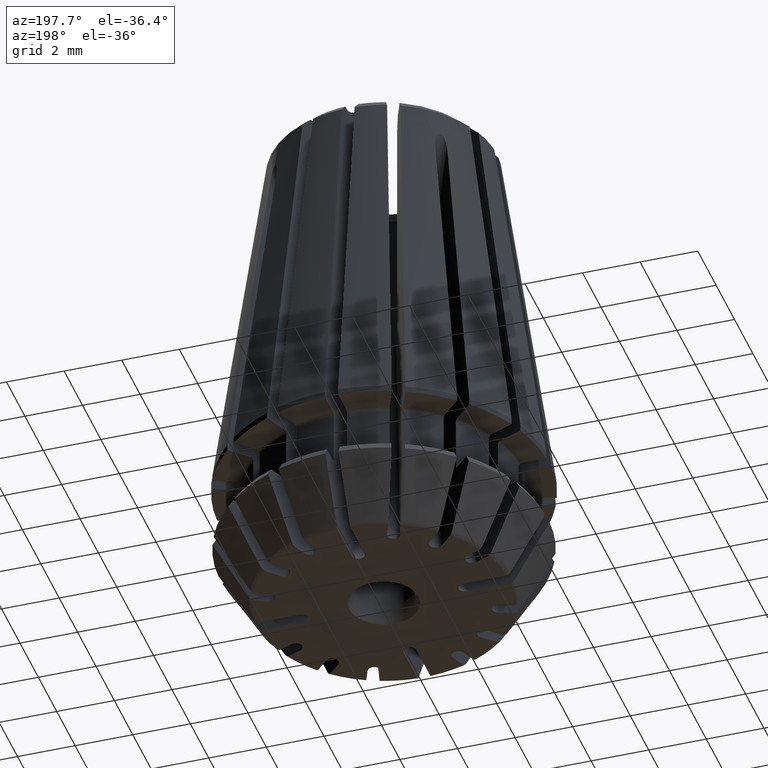
[diagram: clean part render]
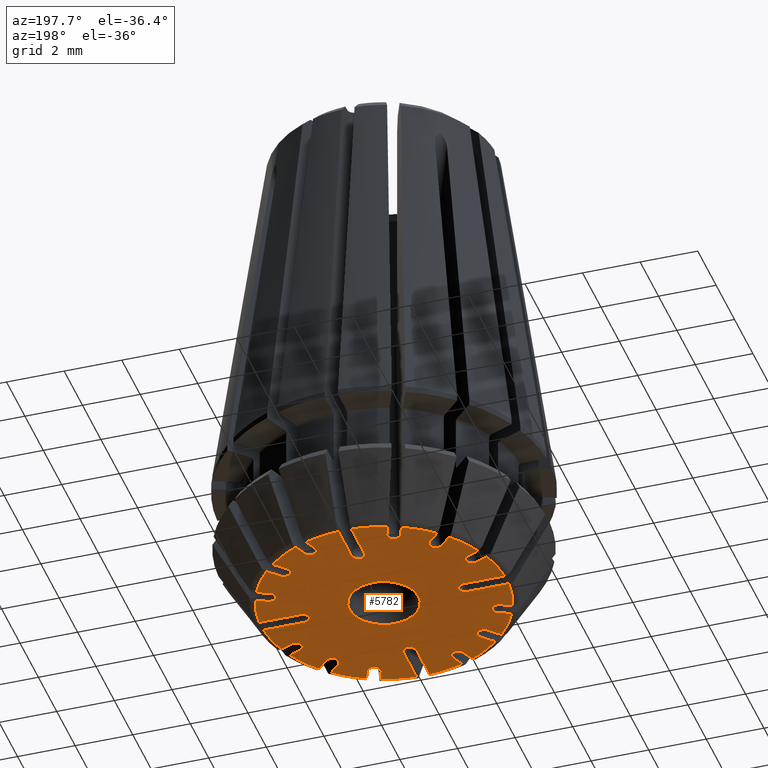
[diagram: same view with one face highlighted and labeled with its STEP entity id]
A machine part, auxiliary view. The second image highlights one B-rep face of the part: STEP entity #5782.
In plain terms, the highlighted planar face has unit normal (0, 0, 1).
Its self-contained STEP definition (entity closure, byte-faithful):
#638=LINE('',#10149,#982);
#644=LINE('',#10169,#988);
#656=LINE('',#10223,#1000);
#661=LINE('',#10236,#1005);
#668=LINE('',#10258,#1012);
#673=LINE('',#10271,#1017);
#678=LINE('',#10285,#1022);
#679=LINE('',#10287,#1023);
#683=LINE('',#10300,#1027);
#688=LINE('',#10325,#1032);
#690=LINE('',#10329,#1034);
#694=LINE('',#10341,#1038);
#697=LINE('',#10351,#1041);
#704=LINE('',#10373,#1048);
#705=LINE('',#10376,#1049);
#717=LINE('',#10418,#1061);
#722=LINE('',#10447,#1066);
#756=LINE('',#10656,#1100);
#757=LINE('',#10658,#1101);
#759=LINE('',#10662,#1103);
#761=LINE('',#10666,#1105);
#763=LINE('',#10670,#1107);
#767=LINE('',#10698,#1111);
#768=LINE('',#10704,#1112);
#771=LINE('',#10715,#1115);
#772=LINE('',#10717,#1116);
#776=LINE('',#10735,#1120);
#777=LINE('',#10748,#1121);
#778=LINE('',#10750,#1122);
#780=LINE('',#10753,#1124);
#782=LINE('',#10764,#1126);
#783=LINE('',#10773,#1127);
#982=VECTOR('',#7638,1000.);
#988=VECTOR('',#7646,1000.);
#1000=VECTOR('',#7672,1000.);
#1005=VECTOR('',#7679,1000.);
#1012=VECTOR('',#7690,1000.);
#1017=VECTOR('',#7697,1000.);
#1022=VECTOR('',#7706,1000.);
#1023=VECTOR('',#7709,1000.);
#1027=VECTOR('',#7717,1000.);
#1032=VECTOR('',#7724,1000.);
#1034=VECTOR('',#7728,1000.);
#1038=VECTOR('',#7734,1000.);
#1041=VECTOR('',#7739,1000.);
#1048=VECTOR('',#7748,1000.);
#1049=VECTOR('',#7753,1000.);
#1061=VECTOR('',#7775,1000.);
#1066=VECTOR('',#7782,1000.);
#1100=VECTOR('',#7980,1000.);
#1101=VECTOR('',#7983,1000.);
#1103=VECTOR('',#7987,1000.);
#1105=VECTOR('',#7991,1000.);
#1107=VECTOR('',#7995,1000.);
#1111=VECTOR('',#8013,1000.);
#1112=VECTOR('',#8016,1000.);
#1115=VECTOR('',#8021,1000.);
#1116=VECTOR('',#8024,1000.);
#1120=VECTOR('',#8030,1000.);
#1121=VECTOR('',#8039,1000.);
#1122=VECTOR('',#8042,1000.);
#1124=VECTOR('',#8046,1000.);
#1126=VECTOR('',#8056,1000.);
#1127=VECTOR('',#8071,1000.);
#1163=CIRCLE('',#5871,4.26228675972853);
#1185=CIRCLE('',#5905,4.26228675972853);
#1206=CIRCLE('',#5938,4.26228675972853);
#1229=CIRCLE('',#5975,4.26228675972853);
#1253=CIRCLE('',#6014,4.26228675972853);
#1275=CIRCLE('',#6049,4.26228675972853);
#1296=CIRCLE('',#6084,4.26228675972853);
#1316=CIRCLE('',#6116,4.26228675972853);
#1330=CIRCLE('',#6140,4.26228675972853);
#1340=CIRCLE('',#6158,4.26228675972853);
#1354=CIRCLE('',#6182,4.26228675972853);
#1364=CIRCLE('',#6200,4.26228675972853);
#1378=CIRCLE('',#6224,4.26228675972853);
#1388=CIRCLE('',#6242,4.26228675972853);
#1403=CIRCLE('',#6268,4.26228675972853);
#1416=CIRCLE('',#6290,4.26228675972853);
#1420=CIRCLE('',#6297,1.2);
#3093=ORIENTED_EDGE('',*,*,#4172,.F.);
#3094=ORIENTED_EDGE('',*,*,#4182,.T.);
#3095=ORIENTED_EDGE('',*,*,#4001,.T.);
#3096=ORIENTED_EDGE('',*,*,#3846,.F.);
#3097=ORIENTED_EDGE('',*,*,#4183,.T.);
#3098=ORIENTED_EDGE('',*,*,#3964,.T.);
#3099=ORIENTED_EDGE('',*,*,#3946,.F.);
#3100=ORIENTED_EDGE('',*,*,#3697,.F.);
#3101=ORIENTED_EDGE('',*,*,#4144,.F.);
#3102=ORIENTED_EDGE('',*,*,#4184,.T.);
#3103=ORIENTED_EDGE('',*,*,#4037,.T.);
#3104=ORIENTED_EDGE('',*,*,#3934,.F.);
#3105=ORIENTED_EDGE('',*,*,#4176,.T.);
#3106=ORIENTED_EDGE('',*,*,#3960,.T.);
#3107=ORIENTED_EDGE('',*,*,#3954,.F.);
#3108=ORIENTED_EDGE('',*,*,#3456,.F.);
#3109=ORIENTED_EDGE('',*,*,#4015,.F.);
#3110=ORIENTED_EDGE('',*,*,#4185,.T.);
#3111=ORIENTED_EDGE('',*,*,#4007,.T.);
#3112=ORIENTED_EDGE('',*,*,#3906,.F.);
#3113=ORIENTED_EDGE('',*,*,#4062,.T.);
#3114=ORIENTED_EDGE('',*,*,#4186,.T.);
#3115=ORIENTED_EDGE('',*,*,#4166,.F.);
#3116=ORIENTED_EDGE('',*,*,#3610,.F.);
#3117=ORIENTED_EDGE('',*,*,#4151,.F.);
#3118=ORIENTED_EDGE('',*,*,#4187,.T.);
#3119=ORIENTED_EDGE('',*,*,#4026,.T.);
#3120=ORIENTED_EDGE('',*,*,#3757,.F.);
#3121=ORIENTED_EDGE('',*,*,#4054,.T.);
#3122=ORIENTED_EDGE('',*,*,#4044,.T.);
#3123=ORIENTED_EDGE('',*,*,#4149,.F.);
#3124=ORIENTED_EDGE('',*,*,#3365,.F.);
#3125=ORIENTED_EDGE('',*,*,#4000,.F.);
#3126=ORIENTED_EDGE('',*,*,#4188,.T.);
#3127=ORIENTED_EDGE('',*,*,#4179,.T.);
#3128=ORIENTED_EDGE('',*,*,#3732,.F.);
#3129=ORIENTED_EDGE('',*,*,#3988,.T.);
#3130=ORIENTED_EDGE('',*,*,#4189,.T.);
#3131=ORIENTED_EDGE('',*,*,#4161,.F.);
#3132=ORIENTED_EDGE('',*,*,#3658,.F.);
#3133=ORIENTED_EDGE('',*,*,#4035,.F.);
#3134=ORIENTED_EDGE('',*,*,#4190,.T.);
#3135=ORIENTED_EDGE('',*,*,#4191,.T.);
#3136=ORIENTED_EDGE('',*,*,#3814,.F.);
#3137=ORIENTED_EDGE('',*,*,#3994,.T.);
#3138=ORIENTED_EDGE('',*,*,#4063,.T.);
#3139=ORIENTED_EDGE('',*,*,#4165,.F.);
#3140=ORIENTED_EDGE('',*,*,#3507,.F.);
#3141=ORIENTED_EDGE('',*,*,#4017,.F.);
#3142=ORIENTED_EDGE('',*,*,#4192,.T.);
#3143=ORIENTED_EDGE('',*,*,#4147,.T.);
#3144=ORIENTED_EDGE('',*,*,#3789,.F.);
#3145=ORIENTED_EDGE('',*,*,#3973,.T.);
#3146=ORIENTED_EDGE('',*,*,#4154,.T.);
#3147=ORIENTED_EDGE('',*,*,#4177,.F.);
#3148=ORIENTED_EDGE('',*,*,#3564,.F.);
#3149=ORIENTED_EDGE('',*,*,#4022,.F.);
#3150=ORIENTED_EDGE('',*,*,#4193,.T.);
#3151=ORIENTED_EDGE('',*,*,#4145,.T.);
#3152=ORIENTED_EDGE('',*,*,#3871,.F.);
#3153=ORIENTED_EDGE('',*,*,#3979,.T.);
#3154=ORIENTED_EDGE('',*,*,#4155,.T.);
#3155=ORIENTED_EDGE('',*,*,#4159,.F.);
#3156=ORIENTED_EDGE('',*,*,#3411,.F.);
#3157=ORIENTED_EDGE('',*,*,#3944,.T.);
#3365=EDGE_CURVE('',#4272,#4273,#1163,.T.);
#3411=EDGE_CURVE('',#4308,#4309,#1185,.T.);
#3456=EDGE_CURVE('',#4342,#4343,#1206,.T.);
#3507=EDGE_CURVE('',#4380,#4381,#1229,.T.);
#3564=EDGE_CURVE('',#4424,#4425,#1253,.T.);
#3610=EDGE_CURVE('',#4460,#4461,#1275,.T.);
#3658=EDGE_CURVE('',#4495,#4496,#1296,.T.);
#3697=EDGE_CURVE('',#4525,#4526,#1316,.T.);
#3732=EDGE_CURVE('',#4552,#4553,#1330,.T.);
#3757=EDGE_CURVE('',#4569,#4570,#1340,.T.);
#3789=EDGE_CURVE('',#4591,#4592,#1354,.T.);
#3814=EDGE_CURVE('',#4608,#4609,#1364,.T.);
#3846=EDGE_CURVE('',#4630,#4631,#1378,.T.);
#3871=EDGE_CURVE('',#4647,#4648,#1388,.T.);
#3906=EDGE_CURVE('',#4671,#4672,#1403,.T.);
#3934=EDGE_CURVE('',#4690,#4691,#1416,.T.);
#3944=EDGE_CURVE('',#4698,#4698,#1420,.T.);
#3946=EDGE_CURVE('',#4526,#4700,#638,.T.);
#3954=EDGE_CURVE('',#4343,#4705,#644,.T.);
#3960=EDGE_CURVE('',#4706,#4705,#4828,.T.);
#3964=EDGE_CURVE('',#4709,#4700,#4829,.T.);
#3973=EDGE_CURVE('',#4591,#4714,#656,.T.);
#3979=EDGE_CURVE('',#4647,#4717,#661,.T.);
#3988=EDGE_CURVE('',#4552,#4722,#668,.T.);
#3994=EDGE_CURVE('',#4608,#4725,#673,.T.);
#4000=EDGE_CURVE('',#4728,#4272,#678,.T.);
#4001=EDGE_CURVE('',#4729,#4631,#679,.T.);
#4007=EDGE_CURVE('',#4732,#4672,#683,.T.);
#4015=EDGE_CURVE('',#4735,#4342,#688,.T.);
#4017=EDGE_CURVE('',#4736,#4380,#690,.T.);
#4022=EDGE_CURVE('',#4739,#4424,#694,.T.);
#4026=EDGE_CURVE('',#4742,#4570,#697,.T.);
#4035=EDGE_CURVE('',#4747,#4495,#704,.T.);
#4037=EDGE_CURVE('',#4748,#4691,#705,.T.);
#4044=EDGE_CURVE('',#4753,#4754,#4830,.T.);
#4054=EDGE_CURVE('',#4569,#4753,#717,.T.);
#4062=EDGE_CURVE('',#4671,#4761,#722,.T.);
#4063=EDGE_CURVE('',#4725,#4762,#4831,.T.);
#4144=EDGE_CURVE('',#4794,#4525,#756,.T.);
#4145=EDGE_CURVE('',#4795,#4648,#757,.T.);
#4147=EDGE_CURVE('',#4796,#4592,#759,.T.);
#4149=EDGE_CURVE('',#4273,#4754,#761,.T.);
#4151=EDGE_CURVE('',#4797,#4460,#763,.T.);
#4154=EDGE_CURVE('',#4714,#4799,#4832,.T.);
#4155=EDGE_CURVE('',#4717,#4800,#4833,.T.);
#4159=EDGE_CURVE('',#4309,#4800,#767,.T.);
#4161=EDGE_CURVE('',#4496,#4802,#768,.T.);
#4165=EDGE_CURVE('',#4381,#4762,#771,.T.);
#4166=EDGE_CURVE('',#4461,#4805,#772,.T.);
#4172=EDGE_CURVE('',#4809,#4308,#776,.T.);
#4176=EDGE_CURVE('',#4690,#4706,#777,.T.);
#4177=EDGE_CURVE('',#4425,#4799,#778,.T.);
#4179=EDGE_CURVE('',#4810,#4553,#780,.T.);
#4182=EDGE_CURVE('',#4809,#4729,#4834,.T.);
#4183=EDGE_CURVE('',#4630,#4709,#782,.T.);
#4184=EDGE_CURVE('',#4794,#4748,#4835,.T.);
#4185=EDGE_CURVE('',#4735,#4732,#4836,.T.);
#4186=EDGE_CURVE('',#4761,#4805,#4837,.T.);
#4187=EDGE_CURVE('',#4797,#4742,#4838,.T.);
#4188=EDGE_CURVE('',#4728,#4810,#4839,.T.);
#4189=EDGE_CURVE('',#4722,#4802,#4840,.T.);
#4190=EDGE_CURVE('',#4747,#4811,#4841,.T.);
#4191=EDGE_CURVE('',#4811,#4609,#783,.T.);
#4192=EDGE_CURVE('',#4736,#4796,#4842,.T.);
#4193=EDGE_CURVE('',#4739,#4795,#4843,.T.);
#4272=VERTEX_POINT('',#8330);
#4273=VERTEX_POINT('',#8332);
#4308=VERTEX_POINT('',#8480);
#4309=VERTEX_POINT('',#8482);
#4342=VERTEX_POINT('',#8627);
#4343=VERTEX_POINT('',#8629);
#4380=VERTEX_POINT('',#8786);
#4381=VERTEX_POINT('',#8788);
#4424=VERTEX_POINT('',#8975);
#4425=VERTEX_POINT('',#8977);
#4460=VERTEX_POINT('',#9108);
#4461=VERTEX_POINT('',#9110);
#4495=VERTEX_POINT('',#9267);
#4496=VERTEX_POINT('',#9269);
#4525=VERTEX_POINT('',#9374);
#4526=VERTEX_POINT('',#9376);
#4552=VERTEX_POINT('',#9492);
#4553=VERTEX_POINT('',#9493);
#4569=VERTEX_POINT('',#9563);
#4570=VERTEX_POINT('',#9564);
#4591=VERTEX_POINT('',#9666);
#4592=VERTEX_POINT('',#9667);
#4608=VERTEX_POINT('',#9737);
#4609=VERTEX_POINT('',#9738);
#4630=VERTEX_POINT('',#9840);
#4631=VERTEX_POINT('',#9841);
#4647=VERTEX_POINT('',#9911);
#4648=VERTEX_POINT('',#9912);
#4671=VERTEX_POINT('',#10026);
#4672=VERTEX_POINT('',#10027);
#4690=VERTEX_POINT('',#10118);
#4691=VERTEX_POINT('',#10119);
#4698=VERTEX_POINT('',#10145);
#4700=VERTEX_POINT('',#10150);
#4705=VERTEX_POINT('',#10170);
#4706=VERTEX_POINT('',#10183);
#4709=VERTEX_POINT('',#10202);
#4714=VERTEX_POINT('',#10222);
#4717=VERTEX_POINT('',#10235);
#4722=VERTEX_POINT('',#10257);
#4725=VERTEX_POINT('',#10270);
#4728=VERTEX_POINT('',#10284);
#4729=VERTEX_POINT('',#10288);
#4732=VERTEX_POINT('',#10301);
#4735=VERTEX_POINT('',#10324);
#4736=VERTEX_POINT('',#10328);
#4739=VERTEX_POINT('',#10340);
#4742=VERTEX_POINT('',#10352);
#4747=VERTEX_POINT('',#10372);
#4748=VERTEX_POINT('',#10377);
#4753=VERTEX_POINT('',#10399);
#4754=VERTEX_POINT('',#10400);
#4761=VERTEX_POINT('',#10446);
#4762=VERTEX_POINT('',#10450);
#4794=VERTEX_POINT('',#10655);
#4795=VERTEX_POINT('',#10659);
#4796=VERTEX_POINT('',#10663);
#4797=VERTEX_POINT('',#10669);
#4799=VERTEX_POINT('',#10684);
#4800=VERTEX_POINT('',#10688);
#4802=VERTEX_POINT('',#10705);
#4805=VERTEX_POINT('',#10718);
#4809=VERTEX_POINT('',#10734);
#4810=VERTEX_POINT('',#10754);
#4811=VERTEX_POINT('',#10772);
#4828=ELLIPSE('',#6304,0.228103594886184,0.225);
#4829=ELLIPSE('',#6306,0.259807621135332,0.225);
#4830=ELLIPSE('',#6325,0.228103594886183,0.225);
#4831=ELLIPSE('',#6331,0.228103594886184,0.225);
#4832=ELLIPSE('',#6418,0.259807621135332,0.225);
#4833=ELLIPSE('',#6420,0.228103594886184,0.225);
#4834=ELLIPSE('',#6436,0.228470987674293,0.225);
#4835=ELLIPSE('',#6437,0.228470987674293,0.225);
#4836=ELLIPSE('',#6438,0.228470987674293,0.225);
#4837=ELLIPSE('',#6439,0.259807621135332,0.225);
#4838=ELLIPSE('',#6440,0.228470987674293,0.225);
#4839=ELLIPSE('',#6441,0.228470987674293,0.225);
#4840=ELLIPSE('',#6442,0.259807621135332,0.225);
#4841=ELLIPSE('',#6443,0.228470987674293,0.225);
#4842=ELLIPSE('',#6444,0.228470987674293,0.225);
#4843=ELLIPSE('',#6445,0.228470987674293,0.225);
#5118=EDGE_LOOP('',(#3093,#3094,#3095,#3096,#3097,#3098,#3099,#3100,#3101,
#3102,#3103,#3104,#3105,#3106,#3107,#3108,#3109,#3110,#3111,#3112,#3113,
#3114,#3115,#3116,#3117,#3118,#3119,#3120,#3121,#3122,#3123,#3124,#3125,
#3126,#3127,#3128,#3129,#3130,#3131,#3132,#3133,#3134,#3135,#3136,#3137,
#3138,#3139,#3140,#3141,#3142,#3143,#3144,#3145,#3146,#3147,#3148,#3149,
#3150,#3151,#3152,#3153,#3154,#3155,#3156));
#5119=EDGE_LOOP('',(#3157));
#5412=FACE_BOUND('',#5118,.T.);
#5413=FACE_BOUND('',#5119,.T.);
#5506=PLANE('',#6435);
#5782=ADVANCED_FACE('',(#5412,#5413),#5506,.F.);
#5871=AXIS2_PLACEMENT_3D('',#8331,#6602,#6603);
#5905=AXIS2_PLACEMENT_3D('',#8481,#6684,#6685);
#5938=AXIS2_PLACEMENT_3D('',#8628,#6764,#6765);
#5975=AXIS2_PLACEMENT_3D('',#8787,#6856,#6857);
#6014=AXIS2_PLACEMENT_3D('',#8976,#6950,#6951);
#6049=AXIS2_PLACEMENT_3D('',#9109,#7036,#7037);
#6084=AXIS2_PLACEMENT_3D('',#9268,#7122,#7123);
#6116=AXIS2_PLACEMENT_3D('',#9375,#7198,#7199);
#6140=AXIS2_PLACEMENT_3D('',#9491,#7258,#7259);
#6158=AXIS2_PLACEMENT_3D('',#9562,#7302,#7303);
#6182=AXIS2_PLACEMENT_3D('',#9665,#7358,#7359);
#6200=AXIS2_PLACEMENT_3D('',#9736,#7402,#7403);
#6224=AXIS2_PLACEMENT_3D('',#9839,#7458,#7459);
#6242=AXIS2_PLACEMENT_3D('',#9910,#7502,#7503);
#6268=AXIS2_PLACEMENT_3D('',#10025,#7562,#7563);
#6290=AXIS2_PLACEMENT_3D('',#10117,#7614,#7615);
#6297=AXIS2_PLACEMENT_3D('',#10144,#7632,#7633);
#6304=AXIS2_PLACEMENT_3D('',#10182,#7657,#7658);
#6306=AXIS2_PLACEMENT_3D('',#10201,#7662,#7663);
#6325=AXIS2_PLACEMENT_3D('',#10398,#7759,#7760);
#6331=AXIS2_PLACEMENT_3D('',#10449,#7785,#7786);
#6418=AXIS2_PLACEMENT_3D('',#10685,#8001,#8002);
#6420=AXIS2_PLACEMENT_3D('',#10687,#8005,#8006);
#6435=AXIS2_PLACEMENT_3D('',#10762,#8052,#8053);
#6436=AXIS2_PLACEMENT_3D('',#10763,#8054,#8055);
#6437=AXIS2_PLACEMENT_3D('',#10765,#8057,#8058);
#6438=AXIS2_PLACEMENT_3D('',#10766,#8059,#8060);
#6439=AXIS2_PLACEMENT_3D('',#10767,#8061,#8062);
#6440=AXIS2_PLACEMENT_3D('',#10768,#8063,#8064);
#6441=AXIS2_PLACEMENT_3D('',#10769,#8065,#8066);
#6442=AXIS2_PLACEMENT_3D('',#10770,#8067,#8068);
#6443=AXIS2_PLACEMENT_3D('',#10771,#8069,#8070);
#6444=AXIS2_PLACEMENT_3D('',#10774,#8072,#8073);
#6445=AXIS2_PLACEMENT_3D('',#10775,#8074,#8075);
#6602=DIRECTION('',(0.,0.,1.));
#6603=DIRECTION('',(1.,0.,0.));
#6684=DIRECTION('',(0.,0.,1.));
#6685=DIRECTION('',(1.,0.,0.));
#6764=DIRECTION('',(0.,0.,1.));
#6765=DIRECTION('',(1.,0.,0.));
#6856=DIRECTION('',(0.,0.,1.));
#6857=DIRECTION('',(1.,0.,0.));
#6950=DIRECTION('',(0.,0.,1.));
#6951=DIRECTION('',(1.,0.,0.));
#7036=DIRECTION('',(0.,0.,1.));
#7037=DIRECTION('',(1.,0.,0.));
#7122=DIRECTION('',(0.,0.,1.));
#7123=DIRECTION('',(1.,0.,0.));
#7198=DIRECTION('',(0.,0.,1.));
#7199=DIRECTION('',(1.,0.,0.));
#7258=DIRECTION('',(0.,0.,1.));
#7259=DIRECTION('',(1.,0.,0.));
#7302=DIRECTION('',(0.,0.,1.));
#7303=DIRECTION('',(1.,0.,0.));
#7358=DIRECTION('',(0.,0.,1.));
#7359=DIRECTION('',(1.,0.,0.));
#7402=DIRECTION('',(0.,0.,1.));
#7403=DIRECTION('',(1.,0.,0.));
#7458=DIRECTION('',(0.,0.,1.));
#7459=DIRECTION('',(1.,0.,0.));
#7502=DIRECTION('',(0.,0.,1.));
#7503=DIRECTION('',(1.,0.,0.));
#7562=DIRECTION('',(0.,0.,1.));
#7563=DIRECTION('',(1.,0.,0.));
#7614=DIRECTION('',(0.,0.,1.));
#7615=DIRECTION('',(1.,0.,0.));
#7632=DIRECTION('',(0.,0.,1.));
#7633=DIRECTION('',(1.,0.,0.));
#7638=DIRECTION('',(0.,1.,0.));
#7646=DIRECTION('',(0.707106781186548,0.707106781186548,0.));
#7657=DIRECTION('',(0.,0.,1.));
#7658=DIRECTION('',(-0.707106781186548,-0.707106781186548,0.));
#7662=DIRECTION('',(0.,0.,1.));
#7663=DIRECTION('',(0.,-1.,0.));
#7672=DIRECTION('',(-1.,-1.83697019872103E-16,0.));
#7679=DIRECTION('',(-0.707106781186548,0.707106781186548,0.));
#7690=DIRECTION('',(1.22464679914735E-16,-1.,0.));
#7697=DIRECTION('',(-0.707106781186548,-0.707106781186548,0.));
#7706=DIRECTION('',(-0.38268343236509,0.923879532511287,-3.59445166682828E-16));
#7709=DIRECTION('',(0.38268343236509,-0.923879532511287,-3.59445166682828E-16));
#7717=DIRECTION('',(-0.923879532511287,-0.38268343236509,-3.59445166682827E-16));
#7724=DIRECTION('',(-0.923879532511287,-0.38268343236509,-3.59445166682827E-16));
#7728=DIRECTION('',(0.923879532511287,0.38268343236509,-3.59445166682827E-16));
#7734=DIRECTION('',(0.923879532511287,-0.38268343236509,3.59445166682827E-16));
#7739=DIRECTION('',(-0.923879532511287,0.38268343236509,-3.59445166682827E-16));
#7748=DIRECTION('',(0.38268343236509,0.923879532511287,3.59445166682827E-16));
#7753=DIRECTION('',(-0.38268343236509,-0.923879532511287,-3.59445166682827E-16));
#7759=DIRECTION('',(0.,0.,1.));
#7760=DIRECTION('',(-0.707106781186547,0.707106781186548,0.));
#7775=DIRECTION('',(0.707106781186547,-0.707106781186548,0.));
#7782=DIRECTION('',(1.,-1.60812264967663E-16,0.));
#7785=DIRECTION('',(0.,0.,1.));
#7786=DIRECTION('',(0.707106781186548,0.707106781186548,0.));
#7980=DIRECTION('',(-0.38268343236509,-0.923879532511287,-3.59445166682827E-16));
#7983=DIRECTION('',(0.923879532511287,-0.38268343236509,3.59445166682827E-16));
#7987=DIRECTION('',(0.923879532511287,0.38268343236509,-3.59445166682827E-16));
#7991=DIRECTION('',(0.707106781186547,-0.707106781186548,0.));
#7995=DIRECTION('',(-0.923879532511287,0.38268343236509,-3.59445166682827E-16));
#8001=DIRECTION('',(0.,0.,1.));
#8002=DIRECTION('',(1.,1.83697019872103E-16,0.));
#8005=DIRECTION('',(0.,0.,1.));
#8006=DIRECTION('',(0.707106781186548,-0.707106781186548,0.));
#8013=DIRECTION('',(-0.707106781186548,0.707106781186548,0.));
#8016=DIRECTION('',(1.22464679914735E-16,-1.,0.));
#8021=DIRECTION('',(-0.707106781186548,-0.707106781186548,0.));
#8024=DIRECTION('',(1.,-1.60812264967663E-16,0.));
#8030=DIRECTION('',(0.38268343236509,-0.923879532511287,-3.59445166682828E-16));
#8039=DIRECTION('',(0.707106781186548,0.707106781186548,0.));
#8042=DIRECTION('',(-1.,-1.83697019872103E-16,0.));
#8046=DIRECTION('',(-0.38268343236509,0.923879532511287,-3.59445166682828E-16));
#8052=DIRECTION('',(0.,0.,1.));
#8053=DIRECTION('',(1.,0.,0.));
#8054=DIRECTION('',(0.,0.,1.));
#8055=DIRECTION('',(-0.38268343236509,0.923879532511287,0.));
#8056=DIRECTION('',(0.,1.,0.));
#8057=DIRECTION('',(0.,0.,1.));
#8058=DIRECTION('',(-0.38268343236509,-0.923879532511287,0.));
#8059=DIRECTION('',(0.,0.,1.));
#8060=DIRECTION('',(-0.923879532511287,-0.38268343236509,0.));
#8061=DIRECTION('',(0.,0.,1.));
#8062=DIRECTION('',(-1.,1.60812264967664E-16,0.));
#8063=DIRECTION('',(0.,0.,1.));
#8064=DIRECTION('',(-0.923879532511287,0.38268343236509,0.));
#8065=DIRECTION('',(0.,0.,1.));
#8066=DIRECTION('',(-0.38268343236509,0.923879532511287,0.));
#8067=DIRECTION('',(0.,0.,1.));
#8068=DIRECTION('',(-1.22464679914735E-16,1.,0.));
#8069=DIRECTION('',(0.,0.,1.));
#8070=DIRECTION('',(0.38268343236509,0.923879532511287,0.));
#8071=DIRECTION('',(0.38268343236509,0.923879532511287,3.59445166682827E-16));
#8072=DIRECTION('',(0.,0.,1.));
#8073=DIRECTION('',(-0.923879532511287,-0.38268343236509,0.));
#8074=DIRECTION('',(0.,0.,1.));
#8075=DIRECTION('',(0.923879532511287,-0.38268343236509,0.));
#8330=CARTESIAN_POINT('',(-1.83670518901107,3.84624524319718,-4.5));
#8331=CARTESIAN_POINT('',(0.,0.,-4.5));
#8332=CARTESIAN_POINT('',(-2.85059061123527,3.16878866276922,-4.50000000000012));
#8480=CARTESIAN_POINT('',(1.83670518901106,-3.84624524319719,-4.5));
#8481=CARTESIAN_POINT('',(0.,0.,-4.5));
#8482=CARTESIAN_POINT('',(2.85059061123527,-3.16878866276922,-4.50000000000012));
#8627=CARTESIAN_POINT('',(-3.84624524319718,-1.83670518901106,-4.5));
#8628=CARTESIAN_POINT('',(0.,0.,-4.5));
#8629=CARTESIAN_POINT('',(-3.16878866276823,-2.85059061123428,-4.5));
#8786=CARTESIAN_POINT('',(3.84624524319718,1.83670518901106,-4.5));
#8787=CARTESIAN_POINT('',(0.,0.,-4.5));
#8788=CARTESIAN_POINT('',(3.16878866276922,2.85059061123527,-4.50000000000012));
#8975=CARTESIAN_POINT('',(4.01845278776147,-1.42095939938098,-4.5));
#8976=CARTESIAN_POINT('',(0.,0.,-4.5));
#8977=CARTESIAN_POINT('',(4.25634390318231,-0.225,-4.50000000000012));
#9108=CARTESIAN_POINT('',(-4.01845278776147,1.42095939938098,-4.5));
#9109=CARTESIAN_POINT('',(0.,0.,-4.5));
#9110=CARTESIAN_POINT('',(-4.25634390318225,0.225,-4.50000000000012));
#9267=CARTESIAN_POINT('',(1.42095939938098,4.01845278776147,-4.5));
#9268=CARTESIAN_POINT('',(0.,0.,-4.5));
#9269=CARTESIAN_POINT('',(0.225,4.25634390318231,-4.50000000000012));
#9374=CARTESIAN_POINT('',(-1.42095939938098,-4.01845278776147,-4.5));
#9375=CARTESIAN_POINT('',(0.,0.,-4.5));
#9376=CARTESIAN_POINT('',(-0.225,-4.25634390318206,-4.50000000000012));
#9491=CARTESIAN_POINT('',(0.,0.,-4.5));
#9492=CARTESIAN_POINT('',(-0.225,4.25634390318231,-4.50000000000012));
#9493=CARTESIAN_POINT('',(-1.42095939938099,4.01845278776147,-4.5));
#9562=CARTESIAN_POINT('',(0.,0.,-4.5));
#9563=CARTESIAN_POINT('',(-3.16878866276921,2.85059061123527,-4.50000000000012));
#9564=CARTESIAN_POINT('',(-3.84624524319718,1.83670518901106,-4.5));
#9665=CARTESIAN_POINT('',(0.,0.,-4.5));
#9666=CARTESIAN_POINT('',(4.25634390318231,0.225,-4.50000000000012));
#9667=CARTESIAN_POINT('',(4.01845278776147,1.42095939938099,-4.5));
#9736=CARTESIAN_POINT('',(0.,0.,-4.5));
#9737=CARTESIAN_POINT('',(2.85059061123527,3.16878866276922,-4.50000000000012));
#9738=CARTESIAN_POINT('',(1.83670518901106,3.84624524319718,-4.5));
#9839=CARTESIAN_POINT('',(0.,0.,-4.5));
#9840=CARTESIAN_POINT('',(0.225,-4.25634390318206,-4.50000000000012));
#9841=CARTESIAN_POINT('',(1.42095939938098,-4.01845278776147,-4.5));
#9910=CARTESIAN_POINT('',(0.,0.,-4.5));
#9911=CARTESIAN_POINT('',(3.16878866276922,-2.85059061123527,-4.50000000000012));
#9912=CARTESIAN_POINT('',(3.84624524319718,-1.83670518901106,-4.5));
#10025=CARTESIAN_POINT('',(0.,0.,-4.5));
#10026=CARTESIAN_POINT('',(-4.25634390318225,-0.225,-4.50000000000012));
#10027=CARTESIAN_POINT('',(-4.01845278776147,-1.42095939938099,-4.5));
#10117=CARTESIAN_POINT('',(0.,0.,-4.5));
#10118=CARTESIAN_POINT('',(-2.85059061123428,-3.16878866276823,-4.5));
#10119=CARTESIAN_POINT('',(-1.83670518901106,-3.84624524319718,-4.5));
#10144=CARTESIAN_POINT('',(0.,0.,-4.5));
#10145=CARTESIAN_POINT('',(1.2,0.,-4.5));
#10149=CARTESIAN_POINT('',(-0.225,0.,-4.5));
#10150=CARTESIAN_POINT('',(-0.225,-2.85788383248865,-4.5));
#10169=CARTESIAN_POINT('',(-0.159099025766973,0.159099025766973,-4.5));
#10170=CARTESIAN_POINT('',(-2.79526635867694,-2.47706830714299,-4.5));
#10182=CARTESIAN_POINT('',(-2.63616733290996,-2.63616733290996,-4.5));
#10183=CARTESIAN_POINT('',(-2.477068307143,-2.79526635867694,-4.5));
#10201=CARTESIAN_POINT('',(-2.71050543121376E-17,-2.85788383248865,-4.5));
#10202=CARTESIAN_POINT('',(0.225,-2.85788383248865,-4.5));
#10222=CARTESIAN_POINT('',(2.85788383248865,0.225,-4.5));
#10223=CARTESIAN_POINT('',(-4.13318294712232E-17,0.225,-4.5));
#10235=CARTESIAN_POINT('',(2.79526635867694,-2.47706830714299,-4.5));
#10236=CARTESIAN_POINT('',(0.159099025766973,0.159099025766973,-4.5));
#10257=CARTESIAN_POINT('',(-0.225,2.85788383248865,-4.5));
#10258=CARTESIAN_POINT('',(-0.225,-2.75545529808155E-17,-4.5));
#10270=CARTESIAN_POINT('',(2.47706830714299,2.79526635867694,-4.5));
#10271=CARTESIAN_POINT('',(-0.159099025766973,0.159099025766973,-4.5));
#10284=CARTESIAN_POINT('',(-1.66796854906906,3.43887895857993,-4.5));
#10285=CARTESIAN_POINT('',(-1.58053648731002,3.227799289295,-4.5));
#10287=CARTESIAN_POINT('',(1.16479069767993,-3.4000068338593,-4.5));
#10288=CARTESIAN_POINT('',(1.25222275943897,-3.61108650314421,-4.5));
#10300=CARTESIAN_POINT('',(-3.40000683385929,-1.16479069767994,-4.5));
#10301=CARTESIAN_POINT('',(-3.61108650314422,-1.25222275943898,-4.5));
#10324=CARTESIAN_POINT('',(-3.43887895857993,-1.66796854906906,-4.5));
#10325=CARTESIAN_POINT('',(-3.227799289295,-1.58053648731001,-4.5));
#10328=CARTESIAN_POINT('',(3.43887895857992,1.66796854906906,-4.5));
#10329=CARTESIAN_POINT('',(3.227799289295,1.58053648731001,-4.5));
#10340=CARTESIAN_POINT('',(3.61108650314421,-1.25222275943897,-4.5));
#10341=CARTESIAN_POINT('',(3.70488349706835,-1.29107474643218,-4.5));
#10351=CARTESIAN_POINT('',(-3.227799289295,1.58053648731001,-4.5));
#10352=CARTESIAN_POINT('',(-3.43887895857991,1.66796854906906,-4.5));
#10372=CARTESIAN_POINT('',(1.25222275943897,3.61108650314421,-4.5));
#10373=CARTESIAN_POINT('',(1.29107474643218,3.70488349706835,-4.5));
#10376=CARTESIAN_POINT('',(-1.58053648731001,-3.227799289295,-4.5));
#10377=CARTESIAN_POINT('',(-1.66796854906906,-3.43887895857991,-4.5));
#10398=CARTESIAN_POINT('',(-2.63616733290996,2.63616733290996,-4.5));
#10399=CARTESIAN_POINT('',(-2.79526635867694,2.477068307143,-4.5));
#10400=CARTESIAN_POINT('',(-2.47706830714299,2.79526635867694,-4.5));
#10418=CARTESIAN_POINT('',(-0.159099025766973,-0.159099025766973,-4.5));
#10446=CARTESIAN_POINT('',(-2.85788383248865,-0.225,-4.5));
#10447=CARTESIAN_POINT('',(-3.61827596177244E-17,-0.225,-4.5));
#10449=CARTESIAN_POINT('',(2.63616733290996,2.63616733290996,-4.5));
#10450=CARTESIAN_POINT('',(2.79526635867694,2.477068307143,-4.5));
#10655=CARTESIAN_POINT('',(-1.25222275943897,-3.61108650314421,-4.5));
#10656=CARTESIAN_POINT('',(-1.16479069767993,-3.40000683385929,-4.5));
#10658=CARTESIAN_POINT('',(3.53267595250406,-1.70682053606226,-4.5));
#10659=CARTESIAN_POINT('',(3.43887895857991,-1.66796854906906,-4.5));
#10662=CARTESIAN_POINT('',(3.40000683385929,1.16479069767994,-4.5));
#10663=CARTESIAN_POINT('',(3.61108650314421,1.25222275943898,-4.5));
#10666=CARTESIAN_POINT('',(0.159099025766973,0.159099025766973,-4.5));
#10669=CARTESIAN_POINT('',(-3.61108650314421,1.25222275943897,-4.5));
#10670=CARTESIAN_POINT('',(-3.40000683385929,1.16479069767993,-4.5));
#10684=CARTESIAN_POINT('',(2.85788383248865,-0.225,-4.5));
#10685=CARTESIAN_POINT('',(2.85788383248865,4.89190328861863E-16,-4.5));
#10687=CARTESIAN_POINT('',(2.63616733290996,-2.63616733290996,-4.5));
#10688=CARTESIAN_POINT('',(2.477068307143,-2.79526635867694,-4.5));
#10698=CARTESIAN_POINT('',(-0.159099025766973,-0.159099025766973,-4.5));
#10704=CARTESIAN_POINT('',(0.225,2.75545529808155E-17,-4.5));
#10705=CARTESIAN_POINT('',(0.225,2.85788383248865,-4.5));
#10715=CARTESIAN_POINT('',(0.159099025766973,-0.159099025766973,-4.5));
#10717=CARTESIAN_POINT('',(3.61827596177244E-17,0.225,-4.5));
#10718=CARTESIAN_POINT('',(-2.85788383248865,0.225,-4.5));
#10734=CARTESIAN_POINT('',(1.66796854906906,-3.43887895857992,-4.5));
#10735=CARTESIAN_POINT('',(1.58053648731001,-3.227799289295,-4.5));
#10748=CARTESIAN_POINT('',(0.159099025766973,-0.159099025766973,-4.5));
#10750=CARTESIAN_POINT('',(4.13318294712232E-17,-0.225,-4.5));
#10753=CARTESIAN_POINT('',(-1.16479069767994,3.40000683385929,-4.5));
#10754=CARTESIAN_POINT('',(-1.25222275943898,3.61108650314422,-4.5));
#10762=CARTESIAN_POINT('',(0.,0.,-4.5));
#10763=CARTESIAN_POINT('',(1.46009565425401,-3.52498273086207,-4.5));
#10764=CARTESIAN_POINT('',(0.225,0.,-4.5));
#10765=CARTESIAN_POINT('',(-1.46009565425401,-3.52498273086206,-4.5));
#10766=CARTESIAN_POINT('',(-3.52498273086207,-1.46009565425402,-4.5));
#10767=CARTESIAN_POINT('',(-2.85788383248865,4.82457691733267E-16,-4.5));
#10768=CARTESIAN_POINT('',(-3.52498273086206,1.46009565425401,-4.5));
#10769=CARTESIAN_POINT('',(-1.46009565425402,3.52498273086207,-4.5));
#10770=CARTESIAN_POINT('',(-2.99021831595771E-16,2.85788383248865,-4.5));
#10771=CARTESIAN_POINT('',(1.46009565425401,3.52498273086206,-4.5));
#10772=CARTESIAN_POINT('',(1.66796854906906,3.43887895857991,-4.5));
#10773=CARTESIAN_POINT('',(1.70682053606226,3.53267595250406,-4.5));
#10774=CARTESIAN_POINT('',(3.52498273086207,1.46009565425402,-4.5));
#10775=CARTESIAN_POINT('',(3.52498273086206,-1.46009565425401,-4.5));